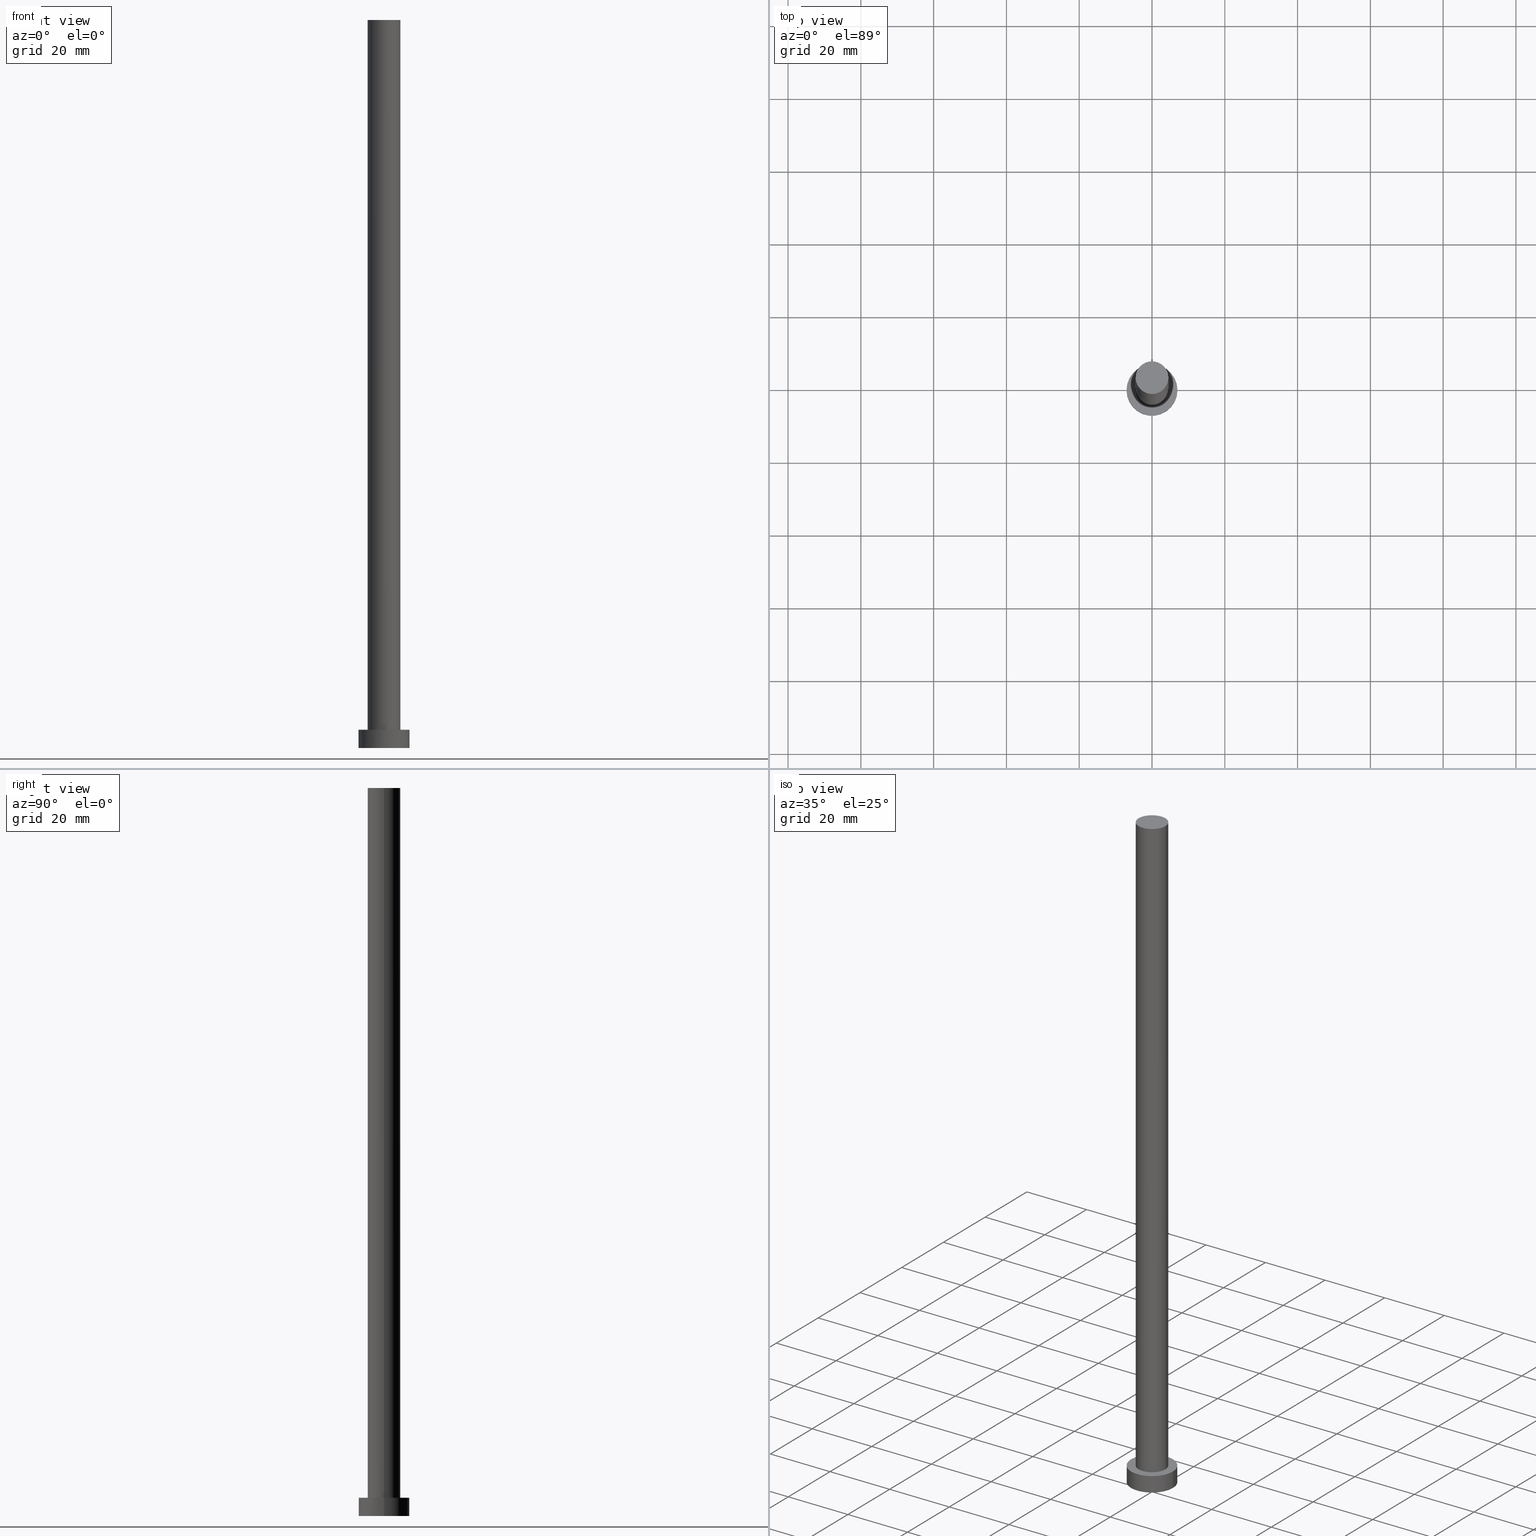
[diagram: canonical four-view strip — front | top / right | iso, engineering-drawing reading convention]
A machine part, canonical four-view strip (front | top / right | iso — engineering-drawing reading convention). The complete STEP part file that produces these views, byte-faithful:
ISO-10303-21;
HEADER;
FILE_DESCRIPTION (( 'STEP AP203' ),
    '1' );
FILE_NAME ('df6a.STEP',
    '2023-02-13T12:08:43',
    ( '' ),
    ( '' ),
    'SwSTEP 2.0',
    'SolidWorks 2019',
    '' );
FILE_SCHEMA (( 'CONFIG_CONTROL_DESIGN' ));
ENDSEC;

DATA;
#1 = CARTESIAN_POINT ( 'NONE',  ( 0.000000000000000000, 0.000000000000000000, 200.0000000000000000 ) ) ;
#2 = VERTEX_POINT ( 'NONE', #64 ) ;
#3 = PRODUCT_DEFINITION ( 'NEZN�M�', '', #72, #172 ) ;
#4 = DIRECTION ( 'NONE',  ( -0.000000000000000000, -0.000000000000000000, -1.000000000000000000 ) ) ;
#5 = DIRECTION ( 'NONE',  ( 1.000000000000000000, 0.000000000000000000, 0.000000000000000000 ) ) ;
#6 = LINE ( 'NONE', #92, #44 ) ;
#7 = EDGE_CURVE ( 'NONE', #250, #9, #46, .T. ) ;
#8 = DATE_AND_TIME ( #220, #59 ) ;
#9 = VERTEX_POINT ( 'NONE', #177 ) ;
#10 = SECURITY_CLASSIFICATION_LEVEL ( 'unclassified' ) ;
#11 = APPLICATION_PROTOCOL_DEFINITION ( 'international standard', 'config_control_design', 1994, #112 ) ;
#12 = ORIENTED_EDGE ( 'NONE', *, *, #86, .F. ) ;
#13 = UNCERTAINTY_MEASURE_WITH_UNIT (LENGTH_MEASURE( 1.000000000000000082E-05 ), #128, 'distance_accuracy_value', 'NONE');
#14 = APPROVAL ( #195, 'NEUR�EN�' ) ;
#15 = DIRECTION ( 'NONE',  ( 0.000000000000000000, 0.000000000000000000, 1.000000000000000000 ) ) ;
#16 = ORIENTED_EDGE ( 'NONE', *, *, #141, .T. ) ;
#17 = AXIS2_PLACEMENT_3D ( 'NONE', #73, #198, #221 ) ;
#18 = CARTESIAN_POINT ( 'NONE',  ( -4.500000000000000888, 0.000000000000000000, 5.000000000000000000 ) ) ;
#19 = LOCAL_TIME ( 13, 8, 43.00000000000000000, #108 ) ;
#20 = CIRCLE ( 'NONE', #137, 4.500000000000000888 ) ;
#21 = VERTEX_POINT ( 'NONE', #235 ) ;
#22 = AXIS2_PLACEMENT_3D ( 'NONE', #50, #35, #242 ) ;
#23 = CC_DESIGN_DATE_AND_TIME_ASSIGNMENT ( #8, #150, ( #144 ) ) ;
#24 = EDGE_LOOP ( 'NONE', ( #182, #251, #192, #231 ) ) ;
#25 = DIRECTION ( 'NONE',  ( 0.000000000000000000, 0.000000000000000000, 1.000000000000000000 ) ) ;
#26 = DIRECTION ( 'NONE',  ( 0.000000000000000000, 0.000000000000000000, 1.000000000000000000 ) ) ;
#27 = ORGANIZATION ( 'NEUR�EN�', 'NEUR�EN�', '' ) ;
#28 = EDGE_CURVE ( 'NONE', #2, #123, #209, .T. ) ;
#29 = APPROVAL_ROLE ( '' ) ;
#30 = CARTESIAN_POINT ( 'NONE',  ( 0.000000000000000000, 0.000000000000000000, 0.000000000000000000 ) ) ;
#31 = EDGE_LOOP ( 'NONE', ( #49, #157, #16, #214 ) ) ;
#32 = CARTESIAN_POINT ( 'NONE',  ( 7.000000000000000000, 8.572527594031473190E-16, 5.000000000000000000 ) ) ;
#33 = AXIS2_PLACEMENT_3D ( 'NONE', #69, #142, #47 ) ;
#34 = CYLINDRICAL_SURFACE ( 'NONE', #77, 7.000000000000000000 ) ;
#35 = DIRECTION ( 'NONE',  ( -0.000000000000000000, -0.000000000000000000, -1.000000000000000000 ) ) ;
#36 = DIRECTION ( 'NONE',  ( 1.000000000000000000, 0.000000000000000000, -0.000000000000000000 ) ) ;
#37 = CC_DESIGN_PERSON_AND_ORGANIZATION_ASSIGNMENT ( #152, #131, ( #144 ) ) ;
#38 = DIRECTION ( 'NONE',  ( -0.000000000000000000, -0.000000000000000000, -1.000000000000000000 ) ) ;
#39 = ORIENTED_EDGE ( 'NONE', *, *, #121, .T. ) ;
#40 = CARTESIAN_POINT ( 'NONE',  ( 0.000000000000000000, 0.000000000000000000, 0.000000000000000000 ) ) ;
#41 = APPROVAL ( #134, 'NEUR�EN�' ) ;
#42 = DATE_TIME_ROLE ( 'creation_date' ) ;
#43 = AXIS2_PLACEMENT_3D ( 'NONE', #1, #162, #119 ) ;
#44 = VECTOR ( 'NONE', #4, 1000.000000000000000 ) ;
#45 = DIRECTION ( 'NONE',  ( 1.000000000000000000, 0.000000000000000000, 0.000000000000000000 ) ) ;
#46 = CIRCLE ( 'NONE', #76, 7.000000000000000000 ) ;
#47 = DIRECTION ( 'NONE',  ( 1.000000000000000000, 0.000000000000000000, 0.000000000000000000 ) ) ;
#48 = FACE_OUTER_BOUND ( 'NONE', #116, .T. ) ;
#49 = ORIENTED_EDGE ( 'NONE', *, *, #74, .F. ) ;
#50 = CARTESIAN_POINT ( 'NONE',  ( 0.000000000000000000, 0.000000000000000000, 200.0000000000000000 ) ) ;
#51 = CC_DESIGN_PERSON_AND_ORGANIZATION_ASSIGNMENT ( #114, #170, ( #72 ) ) ;
#52 = CARTESIAN_POINT ( 'NONE',  ( 7.000000000000000000, 8.572527594031473190E-16, 5.000000000000000000 ) ) ;
#53 = CC_DESIGN_APPROVAL ( #240, ( #144 ) ) ;
#54 = CARTESIAN_POINT ( 'NONE',  ( -4.500000000000000888, 0.000000000000000000, 200.0000000000000000 ) ) ;
#55 = CALENDAR_DATE ( 2023, 13, 2 ) ;
#56 = PLANE ( 'NONE',  #248 ) ;
#57 = CC_DESIGN_PERSON_AND_ORGANIZATION_ASSIGNMENT ( #229, #187, ( #247 ) ) ;
#58 = APPROVAL_DATE_TIME ( #227, #41 ) ;
#59 = LOCAL_TIME ( 13, 8, 43.00000000000000000, #203 ) ;
#60 = COORDINATED_UNIVERSAL_TIME_OFFSET ( 1, 0, .AHEAD. ) ;
#61 = PERSON_AND_ORGANIZATION ( #95, #27 ) ;
#62 = ADVANCED_FACE ( 'NONE', ( #166 ), #179, .T. ) ;
#63 = VECTOR ( 'NONE', #75, 1000.000000000000000 ) ;
#64 = CARTESIAN_POINT ( 'NONE',  ( -7.000000000000000000, 0.000000000000000000, 5.000000000000000000 ) ) ;
#65 = ADVANCED_FACE ( 'NONE', ( #48 ), #217, .T. ) ;
#66 = EDGE_LOOP ( 'NONE', ( #232, #149 ) ) ;
#67 = EDGE_CURVE ( 'NONE', #21, #146, #90, .T. ) ;
#68 = CARTESIAN_POINT ( 'NONE',  ( 0.000000000000000000, 0.000000000000000000, 200.0000000000000000 ) ) ;
#69 = CARTESIAN_POINT ( 'NONE',  ( 0.000000000000000000, 0.000000000000000000, 5.000000000000000000 ) ) ;
#70 = AXIS2_PLACEMENT_3D ( 'NONE', #139, #239, #197 ) ;
#71 = DIRECTION ( 'NONE',  ( 0.000000000000000000, 0.000000000000000000, 1.000000000000000000 ) ) ;
#72 = PRODUCT_DEFINITION_FORMATION_WITH_SPECIFIED_SOURCE ( 'LIBOVOLN�', '', #247, .NOT_KNOWN. ) ;
#73 = CARTESIAN_POINT ( 'NONE',  ( 0.000000000000000000, 0.000000000000000000, 5.000000000000000000 ) ) ;
#74 = EDGE_CURVE ( 'NONE', #123, #9, #200, .T. ) ;
#75 = DIRECTION ( 'NONE',  ( -0.000000000000000000, -0.000000000000000000, -1.000000000000000000 ) ) ;
#76 = AXIS2_PLACEMENT_3D ( 'NONE', #230, #25, #136 ) ;
#77 = AXIS2_PLACEMENT_3D ( 'NONE', #124, #107, #181 ) ;
#78 = APPROVAL_DATE_TIME ( #167, #14 ) ;
#79 = CIRCLE ( 'NONE', #70, 4.500000000000000888 ) ;
#80 = APPROVAL_DATE_TIME ( #190, #240 ) ;
#81 =( NAMED_UNIT ( * ) SI_UNIT ( $, .STERADIAN. ) SOLID_ANGLE_UNIT ( ) );
#82 = LOCAL_TIME ( 13, 8, 43.00000000000000000, #180 ) ;
#83 = AXIS2_PLACEMENT_3D ( 'NONE', #183, #71, #45 ) ;
#84 = ORIENTED_EDGE ( 'NONE', *, *, #87, .T. ) ;
#85 = CIRCLE ( 'NONE', #184, 4.500000000000000888 ) ;
#86 = EDGE_CURVE ( 'NONE', #156, #21, #79, .T. ) ;
#87 = EDGE_CURVE ( 'NONE', #21, #156, #20, .T. ) ;
#88 = CC_DESIGN_APPROVAL ( #41, ( #3 ) ) ;
#89 = CALENDAR_DATE ( 2023, 13, 2 ) ;
#90 = LINE ( 'NONE', #122, #63 ) ;
#91 = CARTESIAN_POINT ( 'NONE',  ( 0.000000000000000000, 0.000000000000000000, 5.000000000000000000 ) ) ;
#92 = CARTESIAN_POINT ( 'NONE',  ( -7.000000000000000000, 0.000000000000000000, 5.000000000000000000 ) ) ;
#93 = CALENDAR_DATE ( 2023, 13, 2 ) ;
#94 = FACE_OUTER_BOUND ( 'NONE', #216, .T. ) ;
#95 = PERSON ( 'NEUR�EN�', 'NEUR�EN�', 'NEUR�EN�', ('NEUR�EN�'), ('NEUR�EN�'), ('NEUR�EN�') ) ;
#96 = CARTESIAN_POINT ( 'NONE',  ( 0.000000000000000000, 0.000000000000000000, 5.000000000000000000 ) ) ;
#97 = ADVANCED_FACE ( 'NONE', ( #106, #199 ), #202, .T. ) ;
#98 = EDGE_LOOP ( 'NONE', ( #253, #117, #39, #111 ) ) ;
#99 = EDGE_LOOP ( 'NONE', ( #101, #12, #211, #246 ) ) ;
#100 = CC_DESIGN_DATE_AND_TIME_ASSIGNMENT ( #155, #42, ( #3 ) ) ;
#101 = ORIENTED_EDGE ( 'NONE', *, *, #67, .F. ) ;
#102 = AXIS2_PLACEMENT_3D ( 'NONE', #245, #249, #191 ) ;
#103 = DIRECTION ( 'NONE',  ( 1.000000000000000000, 0.000000000000000000, -0.000000000000000000 ) ) ;
#104 = DIRECTION ( 'NONE',  ( 0.000000000000000000, 0.000000000000000000, 1.000000000000000000 ) ) ;
#105 = PRODUCT_RELATED_PRODUCT_CATEGORY ( 'detail', '', ( #247 ) ) ;
#106 = FACE_BOUND ( 'NONE', #213, .T. ) ;
#107 = DIRECTION ( 'NONE',  ( -0.000000000000000000, -0.000000000000000000, -1.000000000000000000 ) ) ;
#108 = COORDINATED_UNIVERSAL_TIME_OFFSET ( 1, 0, .AHEAD. ) ;
#109 = EDGE_CURVE ( 'NONE', #146, #175, #196, .T. ) ;
#110 = DIRECTION ( 'NONE',  ( 0.000000000000000000, 0.000000000000000000, 1.000000000000000000 ) ) ;
#111 = ORIENTED_EDGE ( 'NONE', *, *, #141, .F. ) ;
#112 = APPLICATION_CONTEXT ( 'configuration controlled 3d designs of mechanical parts and assemblies' ) ;
#113 = ADVANCED_FACE ( 'NONE', ( #120 ), #148, .T. ) ;
#114 = PERSON_AND_ORGANIZATION ( #95, #27 ) ;
#115 = PERSON_AND_ORGANIZATION ( #95, #27 ) ;
#116 = EDGE_LOOP ( 'NONE', ( #178, #84 ) ) ;
#117 = ORIENTED_EDGE ( 'NONE', *, *, #74, .T. ) ;
#118 = PERSON_AND_ORGANIZATION ( #95, #27 ) ;
#119 = DIRECTION ( 'NONE',  ( 1.000000000000000000, 0.000000000000000000, -0.000000000000000000 ) ) ;
#120 = FACE_OUTER_BOUND ( 'NONE', #31, .T. ) ;
#121 = EDGE_CURVE ( 'NONE', #9, #250, #125, .T. ) ;
#122 = CARTESIAN_POINT ( 'NONE',  ( 4.500000000000000888, 5.510910596163089556E-16, 200.0000000000000000 ) ) ;
#123 = VERTEX_POINT ( 'NONE', #52 ) ;
#124 = CARTESIAN_POINT ( 'NONE',  ( 0.000000000000000000, 0.000000000000000000, 5.000000000000000000 ) ) ;
#125 = CIRCLE ( 'NONE', #143, 7.000000000000000000 ) ;
#126 = ADVANCED_FACE ( 'NONE', ( #127 ), #34, .T. ) ;
#127 = FACE_OUTER_BOUND ( 'NONE', #98, .T. ) ;
#128 =( LENGTH_UNIT ( ) NAMED_UNIT ( * ) SI_UNIT ( .MILLI., .METRE. ) );
#129 = SHAPE_DEFINITION_REPRESENTATION ( #153, #254 ) ;
#130 = CARTESIAN_POINT ( 'NONE',  ( 0.000000000000000000, 0.000000000000000000, 0.000000000000000000 ) ) ;
#131 = PERSON_AND_ORGANIZATION_ROLE ( 'classification_officer' ) ;
#132 = APPROVAL_ROLE ( '' ) ;
#133 = COORDINATED_UNIVERSAL_TIME_OFFSET ( 1, 0, .AHEAD. ) ;
#134 = APPROVAL_STATUS ( 'not_yet_approved' ) ;
#135 = CLOSED_SHELL ( 'NONE', ( #62, #126, #113, #97, #255, #174, #65 ) ) ;
#136 = DIRECTION ( 'NONE',  ( 1.000000000000000000, 0.000000000000000000, 0.000000000000000000 ) ) ;
#137 = AXIS2_PLACEMENT_3D ( 'NONE', #163, #185, #5 ) ;
#138 = CC_DESIGN_PERSON_AND_ORGANIZATION_ASSIGNMENT ( #115, #208, ( #3 ) ) ;
#139 = CARTESIAN_POINT ( 'NONE',  ( 0.000000000000000000, 0.000000000000000000, 200.0000000000000000 ) ) ;
#140 = APPLICATION_CONTEXT ( 'configuration controlled 3d designs of mechanical parts and assemblies' ) ;
#141 = EDGE_CURVE ( 'NONE', #2, #250, #6, .T. ) ;
#142 = DIRECTION ( 'NONE',  ( 0.000000000000000000, 0.000000000000000000, 1.000000000000000000 ) ) ;
#143 = AXIS2_PLACEMENT_3D ( 'NONE', #30, #104, #236 ) ;
#144 = SECURITY_CLASSIFICATION ( '', '', #10 ) ;
#145 = DIRECTION ( 'NONE',  ( -0.000000000000000000, -0.000000000000000000, -1.000000000000000000 ) ) ;
#146 = VERTEX_POINT ( 'NONE', #165 ) ;
#147 = FACE_OUTER_BOUND ( 'NONE', #99, .T. ) ;
#148 = CYLINDRICAL_SURFACE ( 'NONE', #17, 7.000000000000000000 ) ;
#149 = ORIENTED_EDGE ( 'NONE', *, *, #212, .T. ) ;
#150 = DATE_TIME_ROLE ( 'classification_date' ) ;
#151 = ORIENTED_EDGE ( 'NONE', *, *, #7, .F. ) ;
#152 = PERSON_AND_ORGANIZATION ( #95, #27 ) ;
#153 = PRODUCT_DEFINITION_SHAPE ( 'NONE', 'NONE',  #3 ) ;
#154 = DIRECTION ( 'NONE',  ( 1.000000000000000000, 0.000000000000000000, 0.000000000000000000 ) ) ;
#155 = DATE_AND_TIME ( #93, #19 ) ;
#156 = VERTEX_POINT ( 'NONE', #238 ) ;
#157 = ORIENTED_EDGE ( 'NONE', *, *, #28, .F. ) ;
#158 = ORIENTED_EDGE ( 'NONE', *, *, #121, .F. ) ;
#159 = ORIENTED_EDGE ( 'NONE', *, *, #218, .F. ) ;
#160 = APPROVAL_PERSON_ORGANIZATION ( #223, #240, #132 ) ;
#161 = DIRECTION ( 'NONE',  ( -1.000000000000000000, 0.000000000000000000, 0.000000000000000000 ) ) ;
#162 = DIRECTION ( 'NONE',  ( 0.000000000000000000, 0.000000000000000000, 1.000000000000000000 ) ) ;
#163 = CARTESIAN_POINT ( 'NONE',  ( 0.000000000000000000, 0.000000000000000000, 200.0000000000000000 ) ) ;
#164 = APPROVAL_PERSON_ORGANIZATION ( #61, #41, #171 ) ;
#165 = CARTESIAN_POINT ( 'NONE',  ( 4.500000000000000888, 5.510910596163089556E-16, 5.000000000000000000 ) ) ;
#166 = FACE_OUTER_BOUND ( 'NONE', #24, .T. ) ;
#167 = DATE_AND_TIME ( #89, #82 ) ;
#168 = AXIS2_PLACEMENT_3D ( 'NONE', #68, #145, #161 ) ;
#169 = CC_DESIGN_PERSON_AND_ORGANIZATION_ASSIGNMENT ( #241, #224, ( #72 ) ) ;
#170 = PERSON_AND_ORGANIZATION_ROLE ( 'creator' ) ;
#171 = APPROVAL_ROLE ( '' ) ;
#172 = DESIGN_CONTEXT ( 'detailed design', #112, 'design' ) ;
#173 = DIRECTION ( 'NONE',  ( 1.000000000000000000, 0.000000000000000000, 0.000000000000000000 ) ) ;
#174 = ADVANCED_FACE ( 'NONE', ( #147 ), #219, .T. ) ;
#175 = VERTEX_POINT ( 'NONE', #18 ) ;
#176 = ORIENTED_EDGE ( 'NONE', *, *, #109, .F. ) ;
#177 = CARTESIAN_POINT ( 'NONE',  ( 7.000000000000000000, 8.572527594031473190E-16, 0.000000000000000000 ) ) ;
#178 = ORIENTED_EDGE ( 'NONE', *, *, #86, .T. ) ;
#179 = CYLINDRICAL_SURFACE ( 'NONE', #168, 4.500000000000000888 ) ;
#180 = COORDINATED_UNIVERSAL_TIME_OFFSET ( 1, 0, .AHEAD. ) ;
#181 = DIRECTION ( 'NONE',  ( -1.000000000000000000, 0.000000000000000000, 0.000000000000000000 ) ) ;
#182 = ORIENTED_EDGE ( 'NONE', *, *, #87, .F. ) ;
#183 = CARTESIAN_POINT ( 'NONE',  ( 0.000000000000000000, 0.000000000000000000, 5.000000000000000000 ) ) ;
#184 = AXIS2_PLACEMENT_3D ( 'NONE', #96, #207, #173 ) ;
#185 = DIRECTION ( 'NONE',  ( 0.000000000000000000, 0.000000000000000000, 1.000000000000000000 ) ) ;
#186 = MECHANICAL_CONTEXT ( 'NONE', #140, 'mechanical' ) ;
#187 = PERSON_AND_ORGANIZATION_ROLE ( 'design_owner' ) ;
#188 = VECTOR ( 'NONE', #38, 1000.000000000000000 ) ;
#189 = CARTESIAN_POINT ( 'NONE',  ( -7.000000000000000000, 0.000000000000000000, 0.000000000000000000 ) ) ;
#190 = DATE_AND_TIME ( #55, #252 ) ;
#191 = DIRECTION ( 'NONE',  ( 1.000000000000000000, 0.000000000000000000, 0.000000000000000000 ) ) ;
#192 = ORIENTED_EDGE ( 'NONE', *, *, #109, .T. ) ;
#193 = EDGE_CURVE ( 'NONE', #156, #175, #225, .T. ) ;
#194 = AXIS2_PLACEMENT_3D ( 'NONE', #130, #110, #154 ) ;
#195 = APPROVAL_STATUS ( 'not_yet_approved' ) ;
#196 = CIRCLE ( 'NONE', #33, 4.500000000000000888 ) ;
#197 = DIRECTION ( 'NONE',  ( 1.000000000000000000, 0.000000000000000000, 0.000000000000000000 ) ) ;
#198 = DIRECTION ( 'NONE',  ( -0.000000000000000000, -0.000000000000000000, -1.000000000000000000 ) ) ;
#199 = FACE_OUTER_BOUND ( 'NONE', #66, .T. ) ;
#200 = LINE ( 'NONE', #32, #215 ) ;
#201 = CC_DESIGN_SECURITY_CLASSIFICATION ( #144, ( #72 ) ) ;
#202 = PLANE ( 'NONE',  #226 ) ;
#203 = COORDINATED_UNIVERSAL_TIME_OFFSET ( 1, 0, .AHEAD. ) ;
#204 =( NAMED_UNIT ( * ) PLANE_ANGLE_UNIT ( ) SI_UNIT ( $, .RADIAN. ) );
#205 = APPROVAL_STATUS ( 'not_yet_approved' ) ;
#206 = APPROVAL_PERSON_ORGANIZATION ( #118, #14, #29 ) ;
#207 = DIRECTION ( 'NONE',  ( 0.000000000000000000, 0.000000000000000000, 1.000000000000000000 ) ) ;
#208 = PERSON_AND_ORGANIZATION_ROLE ( 'creator' ) ;
#209 = CIRCLE ( 'NONE', #83, 7.000000000000000000 ) ;
#210 = CIRCLE ( 'NONE', #102, 7.000000000000000000 ) ;
#211 = ORIENTED_EDGE ( 'NONE', *, *, #193, .T. ) ;
#212 = EDGE_CURVE ( 'NONE', #123, #2, #210, .T. ) ;
#213 = EDGE_LOOP ( 'NONE', ( #159, #176 ) ) ;
#214 = ORIENTED_EDGE ( 'NONE', *, *, #7, .T. ) ;
#215 = VECTOR ( 'NONE', #234, 1000.000000000000000 ) ;
#216 = EDGE_LOOP ( 'NONE', ( #151, #158 ) ) ;
#217 = PLANE ( 'NONE',  #43 ) ;
#218 = EDGE_CURVE ( 'NONE', #175, #146, #85, .T. ) ;
#219 = CYLINDRICAL_SURFACE ( 'NONE', #22, 4.500000000000000888 ) ;
#220 = CALENDAR_DATE ( 2023, 13, 2 ) ;
#221 = DIRECTION ( 'NONE',  ( -1.000000000000000000, 0.000000000000000000, 0.000000000000000000 ) ) ;
#222 = CC_DESIGN_APPROVAL ( #14, ( #72 ) ) ;
#223 = PERSON_AND_ORGANIZATION ( #95, #27 ) ;
#224 = PERSON_AND_ORGANIZATION_ROLE ( 'design_supplier' ) ;
#225 = LINE ( 'NONE', #54, #188 ) ;
#226 = AXIS2_PLACEMENT_3D ( 'NONE', #91, #26, #103 ) ;
#227 = DATE_AND_TIME ( #244, #237 ) ;
#228 = APPLICATION_PROTOCOL_DEFINITION ( 'international standard', 'config_control_design', 1994, #140 ) ;
#229 = PERSON_AND_ORGANIZATION ( #95, #27 ) ;
#230 = CARTESIAN_POINT ( 'NONE',  ( 0.000000000000000000, 0.000000000000000000, 0.000000000000000000 ) ) ;
#231 = ORIENTED_EDGE ( 'NONE', *, *, #193, .F. ) ;
#232 = ORIENTED_EDGE ( 'NONE', *, *, #28, .T. ) ;
#233 = MANIFOLD_SOLID_BREP ( 'P�idat vysunut�m3', #135 ) ;
#234 = DIRECTION ( 'NONE',  ( -0.000000000000000000, -0.000000000000000000, -1.000000000000000000 ) ) ;
#235 = CARTESIAN_POINT ( 'NONE',  ( 4.500000000000000888, 5.510910596163089556E-16, 200.0000000000000000 ) ) ;
#236 = DIRECTION ( 'NONE',  ( 1.000000000000000000, 0.000000000000000000, 0.000000000000000000 ) ) ;
#237 = LOCAL_TIME ( 13, 8, 43.00000000000000000, #133 ) ;
#238 = CARTESIAN_POINT ( 'NONE',  ( -4.500000000000000888, 0.000000000000000000, 200.0000000000000000 ) ) ;
#239 = DIRECTION ( 'NONE',  ( 0.000000000000000000, 0.000000000000000000, 1.000000000000000000 ) ) ;
#240 = APPROVAL ( #205, 'NEUR�EN�' ) ;
#241 = PERSON_AND_ORGANIZATION ( #95, #27 ) ;
#242 = DIRECTION ( 'NONE',  ( -1.000000000000000000, 0.000000000000000000, 0.000000000000000000 ) ) ;
#243 =( GEOMETRIC_REPRESENTATION_CONTEXT ( 3 ) GLOBAL_UNCERTAINTY_ASSIGNED_CONTEXT ( ( #13 ) ) GLOBAL_UNIT_ASSIGNED_CONTEXT ( ( #128, #204, #81 ) ) REPRESENTATION_CONTEXT ( 'NONE', 'WORKASPACE' ) );
#244 = CALENDAR_DATE ( 2023, 13, 2 ) ;
#245 = CARTESIAN_POINT ( 'NONE',  ( 0.000000000000000000, 0.000000000000000000, 5.000000000000000000 ) ) ;
#246 = ORIENTED_EDGE ( 'NONE', *, *, #218, .T. ) ;
#247 = PRODUCT ( 'df6a', 'df6a', '', ( #186 ) ) ;
#248 = AXIS2_PLACEMENT_3D ( 'NONE', #40, #15, #36 ) ;
#249 = DIRECTION ( 'NONE',  ( 0.000000000000000000, 0.000000000000000000, 1.000000000000000000 ) ) ;
#250 = VERTEX_POINT ( 'NONE', #189 ) ;
#251 = ORIENTED_EDGE ( 'NONE', *, *, #67, .T. ) ;
#252 = LOCAL_TIME ( 13, 8, 43.00000000000000000, #60 ) ;
#253 = ORIENTED_EDGE ( 'NONE', *, *, #212, .F. ) ;
#254 = ADVANCED_BREP_SHAPE_REPRESENTATION ( 'df6a', ( #233, #194 ), #243 ) ;
#255 = ADVANCED_FACE ( 'NONE', ( #94 ), #56, .F. ) ;
ENDSEC;
END-ISO-10303-21;
